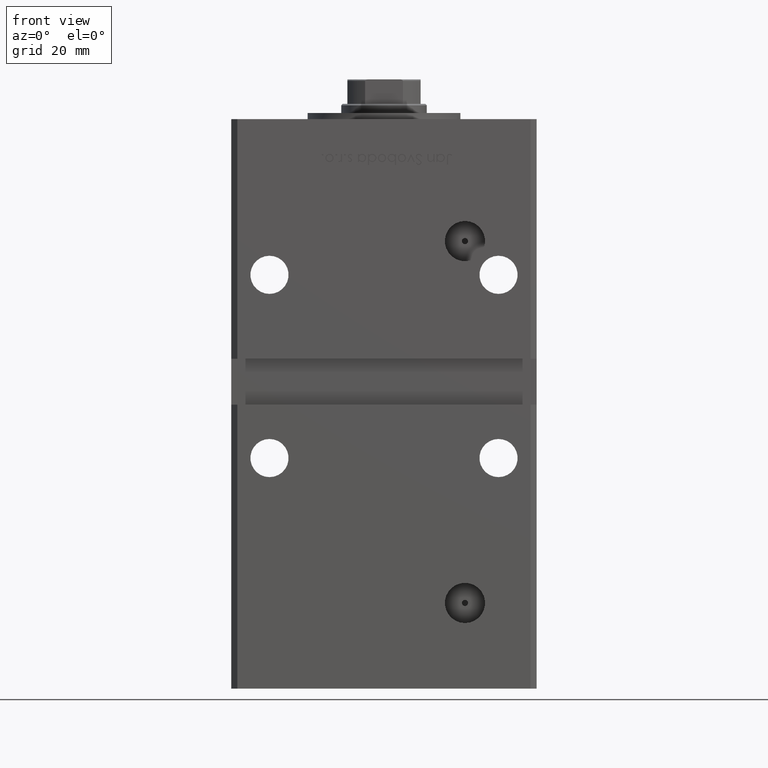
[diagram: clean part render]
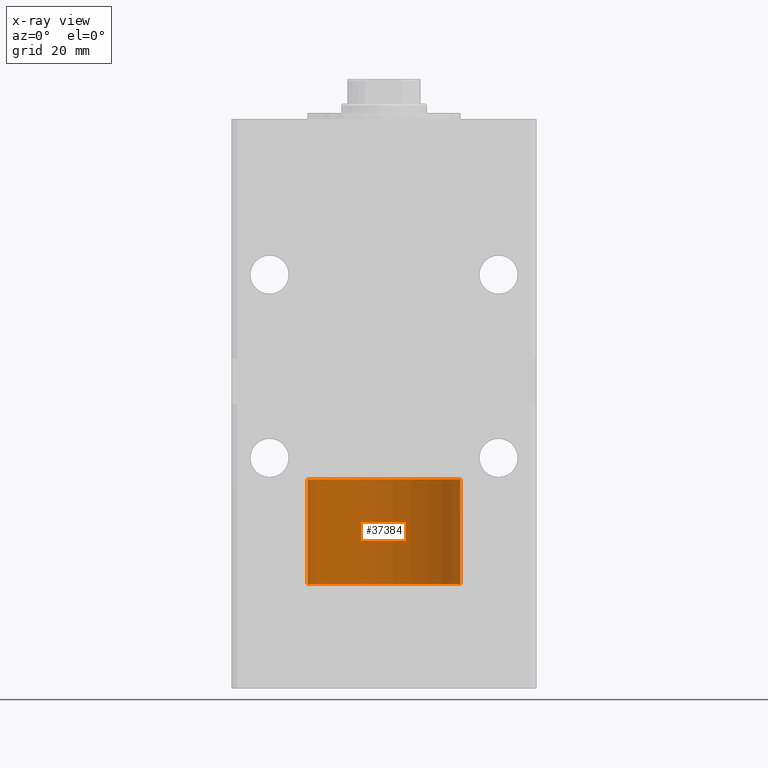
[diagram: x-ray — body ghosted, one internal face saturated and labeled with its STEP entity id]
A machine part, front view, then the same camera in x-ray: the body is ghosted and one INTERNAL B-rep face — a face not visible from any outside direction — is saturated and labeled: STEP entity #37384.
In plain terms, the highlighted cylindrical surface (partial cylindrical patch) has radius 25 mm, axis along (-0, -0, -1).
Its self-contained STEP definition (entity closure, byte-faithful):
#300 = VECTOR ( 'NONE', #49752, 1000.000000000000000 ) ;
#326 = ORIENTED_EDGE ( 'NONE', *, *, #17487, .F. ) ;
#1551 = DIRECTION ( 'NONE',  ( -0.000000000000000000, -0.000000000000000000, -1.000000000000000000 ) ) ;
#2493 = LINE ( 'NONE', #39326, #30305 ) ;
#9471 = CARTESIAN_POINT ( 'NONE',  ( 25.00000000000000000, 3.061616997868383043E-15, 0.000000000000000000 ) ) ;
#11764 = CARTESIAN_POINT ( 'NONE',  ( 0.000000000000000000, 0.000000000000000000, 0.000000000000000000 ) ) ;
#12612 = AXIS2_PLACEMENT_3D ( 'NONE', #33555, #1551, #21177 ) ;
#14624 = EDGE_CURVE ( 'NONE', #50634, #33373, #45214, .T. ) ;
#14849 = DIRECTION ( 'NONE',  ( -0.000000000000000000, -0.000000000000000000, -1.000000000000000000 ) ) ;
#15978 = AXIS2_PLACEMENT_3D ( 'NONE', #39645, #27813, #23775 ) ;
#16352 = CYLINDRICAL_SURFACE ( 'NONE', #12612, 25.00000000000000000 ) ;
#17487 = EDGE_CURVE ( 'NONE', #23494, #33505, #2493, .T. ) ;
#20118 = FACE_OUTER_BOUND ( 'NONE', #27961, .T. ) ;
#20647 = CIRCLE ( 'NONE', #43002, 25.00000000000000000 ) ;
#21177 = DIRECTION ( 'NONE',  ( -1.000000000000000000, 0.000000000000000000, 0.000000000000000000 ) ) ;
#23152 = CARTESIAN_POINT ( 'NONE',  ( -25.00000000000000000, 0.000000000000000000, 0.000000000000000000 ) ) ;
#23494 = VERTEX_POINT ( 'NONE', #44498 ) ;
#23775 = DIRECTION ( 'NONE',  ( 1.000000000000000000, 0.000000000000000000, 0.000000000000000000 ) ) ;
#27813 = DIRECTION ( 'NONE',  ( 0.000000000000000000, 0.000000000000000000, 1.000000000000000000 ) ) ;
#27961 = EDGE_LOOP ( 'NONE', ( #28389, #52926, #36540, #326 ) ) ;
#28389 = ORIENTED_EDGE ( 'NONE', *, *, #40172, .F. ) ;
#30305 = VECTOR ( 'NONE', #14849, 1000.000000000000000 ) ;
#33373 = VERTEX_POINT ( 'NONE', #9471 ) ;
#33505 = VERTEX_POINT ( 'NONE', #23152 ) ;
#33555 = CARTESIAN_POINT ( 'NONE',  ( 0.000000000000000000, 0.000000000000000000, 34.25000000000000000 ) ) ;
#36540 = ORIENTED_EDGE ( 'NONE', *, *, #52471, .T. ) ;
#37123 = CARTESIAN_POINT ( 'NONE',  ( 25.00000000000000000, 3.061616997868383043E-15, 34.25000000000000000 ) ) ;
#37384 = ADVANCED_FACE ( 'NONE', ( #20118 ), #16352, .T. ) ;
#39168 = CIRCLE ( 'NONE', #15978, 25.00000000000000000 ) ;
#39326 = CARTESIAN_POINT ( 'NONE',  ( -25.00000000000000000, 0.000000000000000000, 34.25000000000000000 ) ) ;
#39645 = CARTESIAN_POINT ( 'NONE',  ( 0.000000000000000000, 0.000000000000000000, 34.25000000000000000 ) ) ;
#40172 = EDGE_CURVE ( 'NONE', #50634, #23494, #39168, .T. ) ;
#43002 = AXIS2_PLACEMENT_3D ( 'NONE', #11764, #48592, #49121 ) ;
#44498 = CARTESIAN_POINT ( 'NONE',  ( -25.00000000000000000, 0.000000000000000000, 34.25000000000000000 ) ) ;
#45214 = LINE ( 'NONE', #37123, #300 ) ;
#48592 = DIRECTION ( 'NONE',  ( 0.000000000000000000, 0.000000000000000000, 1.000000000000000000 ) ) ;
#49121 = DIRECTION ( 'NONE',  ( 1.000000000000000000, 0.000000000000000000, 0.000000000000000000 ) ) ;
#49693 = CARTESIAN_POINT ( 'NONE',  ( 25.00000000000000000, 3.061616997868383043E-15, 34.25000000000000000 ) ) ;
#49752 = DIRECTION ( 'NONE',  ( -0.000000000000000000, -0.000000000000000000, -1.000000000000000000 ) ) ;
#50634 = VERTEX_POINT ( 'NONE', #49693 ) ;
#52471 = EDGE_CURVE ( 'NONE', #33373, #33505, #20647, .T. ) ;
#52926 = ORIENTED_EDGE ( 'NONE', *, *, #14624, .T. ) ;